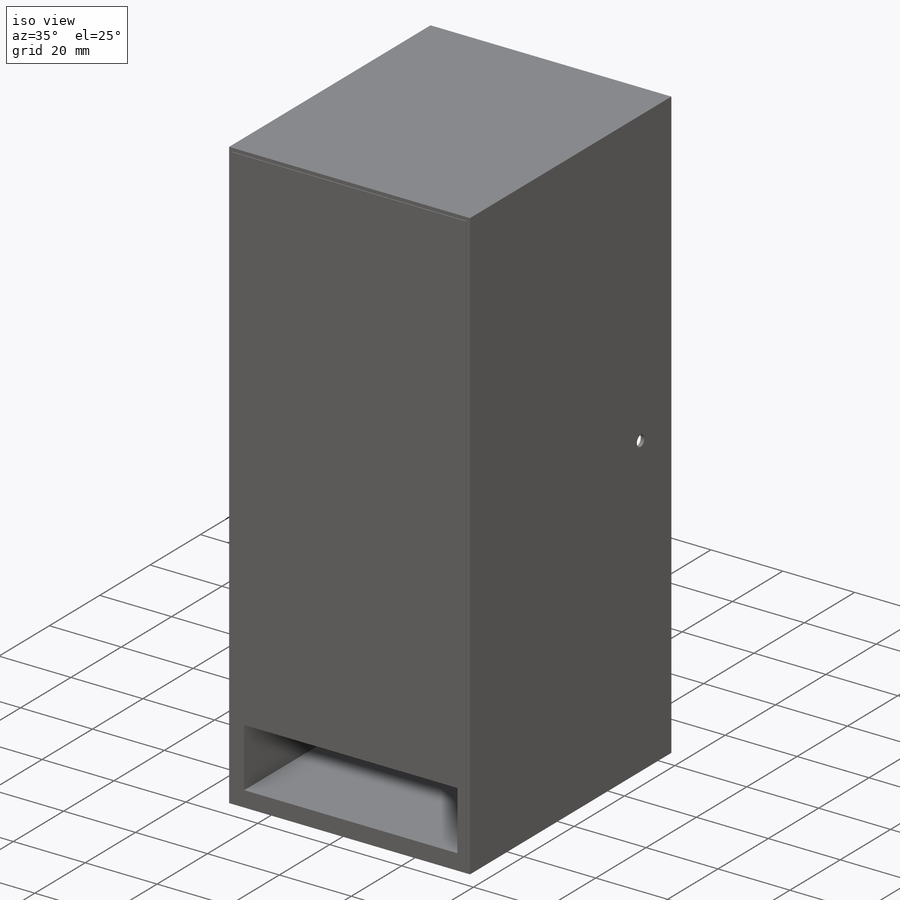
[diagram: iso view]
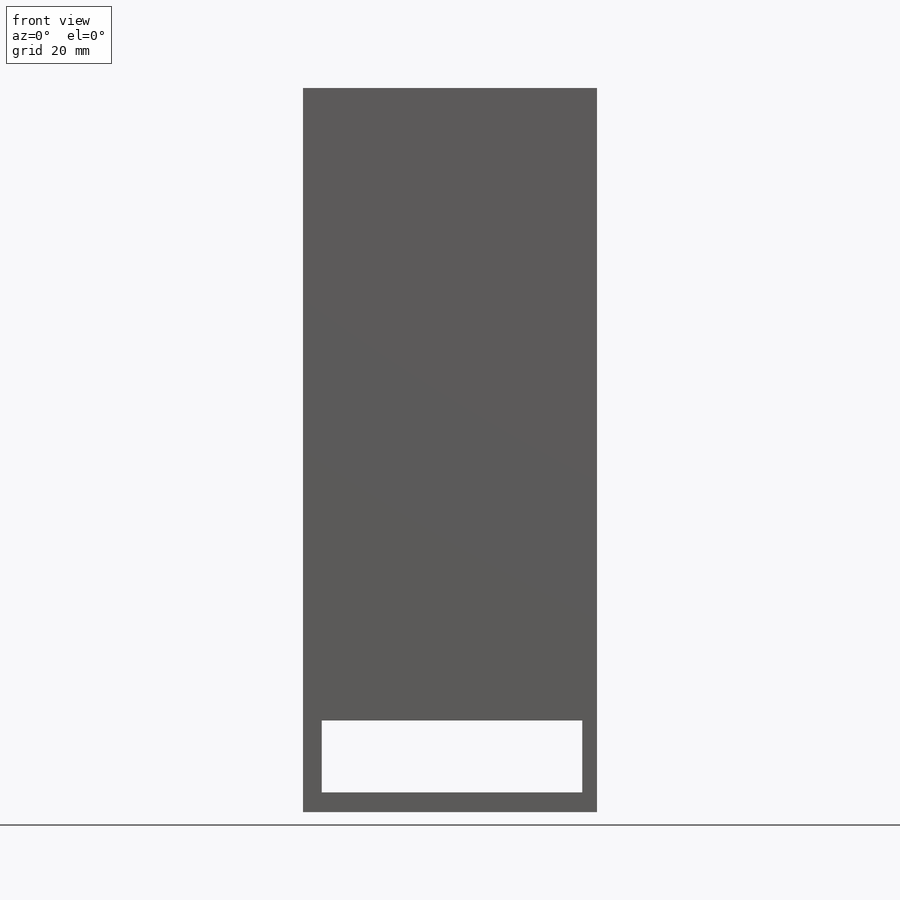
[diagram: front view]
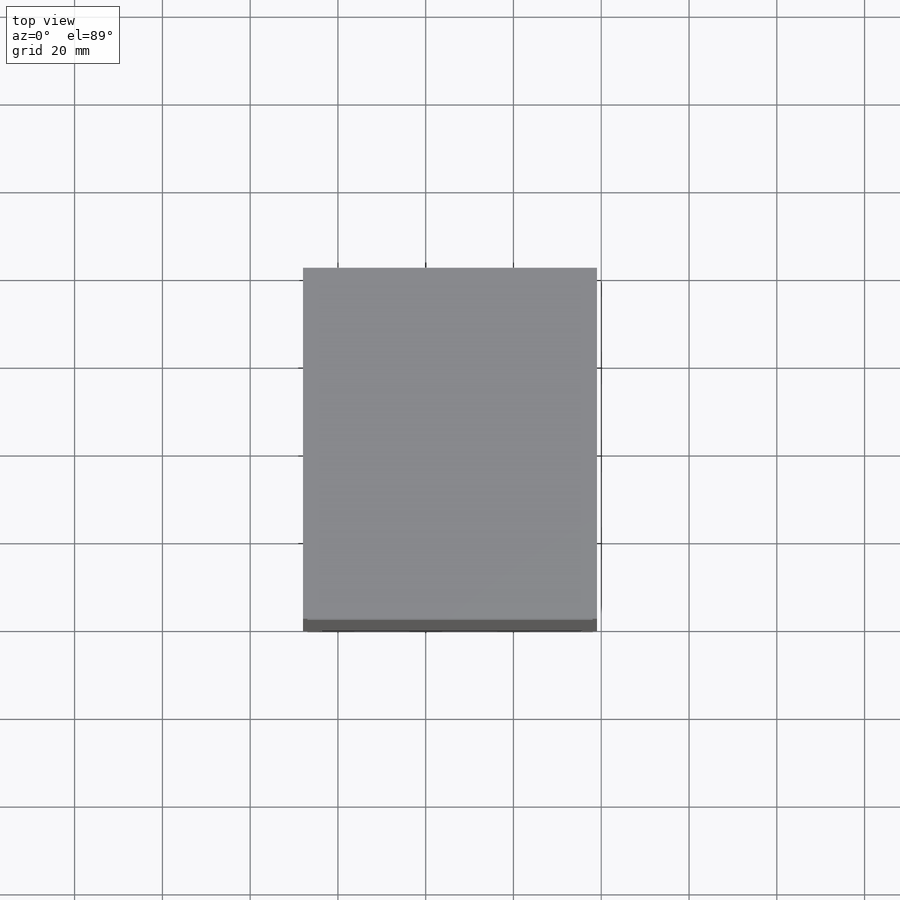
[diagram: top view]
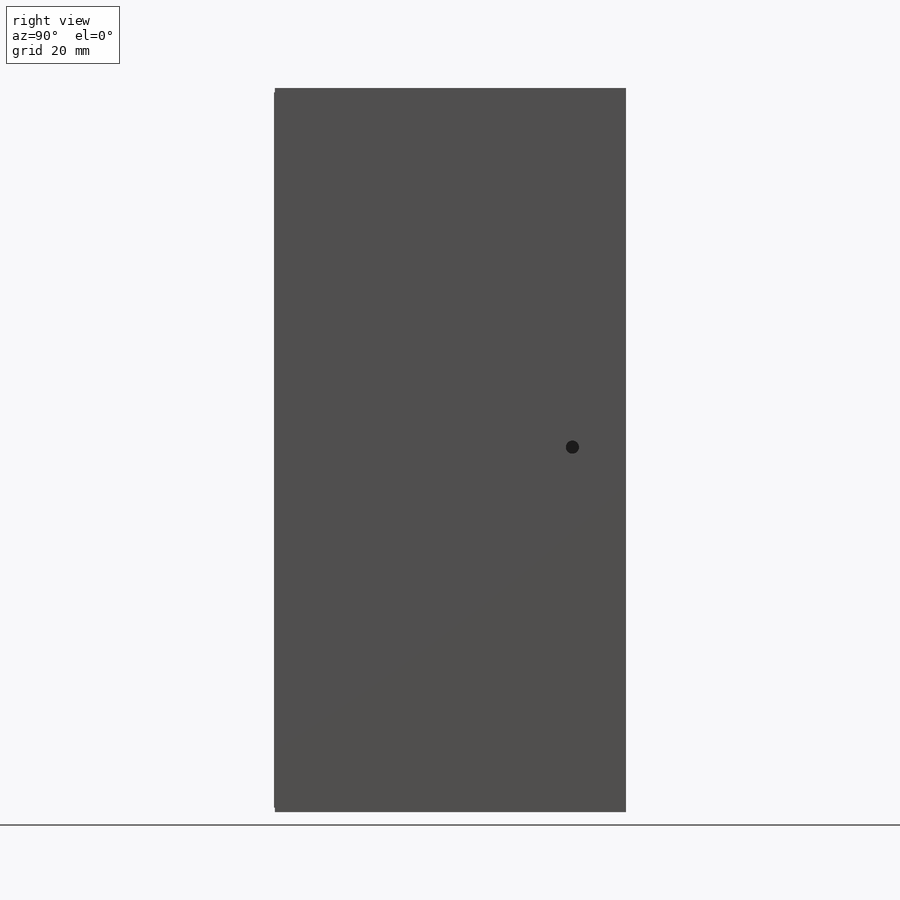
[diagram: right view]
SOLIDWORKS PART (.sldprt)
format: sldprt  version: not decoded by parser v0  size: 337,920 bytes
history: native  units: mm
features: sketch x6, cut_extrude x3, material x1, extrude x1 (+11 scaffold rows collapsed)
feature tree (22):
  scaffold x11  (default folders/planes/origin — collapsed)
  material  "Material <not specified>"
  sketch  "Sketch2"  dims[c1.D1=150.0mm c1.D2=65.0mm c1.D3=150.0mm c2.D1=163.0mm c3.D1=80.0mm c3.D5=1.0mm c3.D6=1.0mm c3.D7=5.0mm]
  sketch  "Sketch3"
  extrude  "Boss-Extrude1"  Depth=0.2mm
  sketch  "Sketch7"  dims[D1=60.0mm D5=1.0mm D6=1.0mm D7=5.0mm]
  sketch  "Sketch8"
  cut_extrude  "Cut-Extrude1"  Depth=10mm
  sketch  "Sketch9"
  cut_extrude  "Cut-Extrude2"  Depth=10mm
  sketch  "Sketch10"  dims[D1=~4.892282mm]
  cut_extrude  "Cut-Extrude3"  Depth=20mm
decode coverage: 7 of 10 modeling features carry decoded parameters
note: ~ marks probable driven/reference dimensions
note: suppression state not decoded; provenance and decode notes live in map.json
